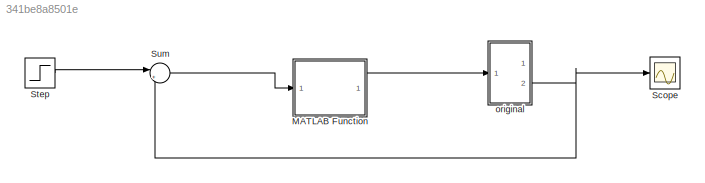
MODEL slx_341be8a8501e
KIND model
CONFIG AbsTol = auto
CONFIG EnableMultiTasking = off
CONFIG FixedStep = auto
CONFIG MaxStep = auto
CONFIG MinStep = auto
CONFIG RelTol = 1e-3
CONFIG SampleTimeConstraint = Unconstrained
CONFIG Solver = VariableStepAuto
CONFIG SolverName = VariableStepAuto
CONFIG StartTime = 0.0
CONFIG StopTime = 10.0
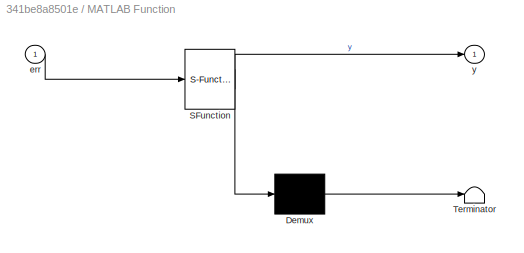
BLOCK [SubSystem] MATLAB Function
  ErrorFcn = Stateflow.Translate.translate
  PermitHierarchicalResolution = ExplicitOnly
  Ports = [1, 1]
  RequestExecContextInheritance = off
  SFBlockType = MATLAB Function
  TreatAsAtomicUnit = on
  Variant = off
BLOCK [Demux] MATLAB Function/ Demux 
  Outputs = 1
  Ports = [1, 1]
BLOCK [S-Function] MATLAB Function/ SFunction 
  EnableBusSupport = on
  FunctionName = sf_sfun
  PortCounts = [1 2]
  Ports = [1, 2]
  SFcnIsStateOwnerBlock = off
  SFunctionDeploymentMode = off
  Tag = Stateflow S-Function pm4_motor_func 2
BLOCK [Terminator] MATLAB Function/ Terminator 
BLOCK [Inport] MATLAB Function/err
  IconDisplay = Port number
BLOCK [Outport] MATLAB Function/y
  IconDisplay = Port number
BLOCK [Scope] Scope
  NumInputPorts = 1
  Ports = [1]
  ScopeSpecificationString = Simulink.scopes.TimeScopeBlockCfg('CurrentConfiguration', extmgr.ConfigurationSet(extmgr.Configuration('Core','General UI',true),extmgr.Configuration('Core','Source UI',true),extmgr.Configuration('Sources','WiredSimulink',true),extmgr.Configuration('Visuals','Time Domain',true,'SerializedDisplays',{struct('MinYLimReal','-0.05872','MaxYLimReal','2.43378','YLabelReal','','MinYLimMag','0.00000','MaxY...<+1427ch>
BLOCK [Step] Step
  SampleTime = 1
BLOCK [Sum] Sum
  IconShape = round
  InputSameDT = off
  Inputs = |+-
  OutDataTypeStr = Inherit: Inherit via internal rule
  Ports = [2, 1]
  SaturateOnIntegerOverflow = off
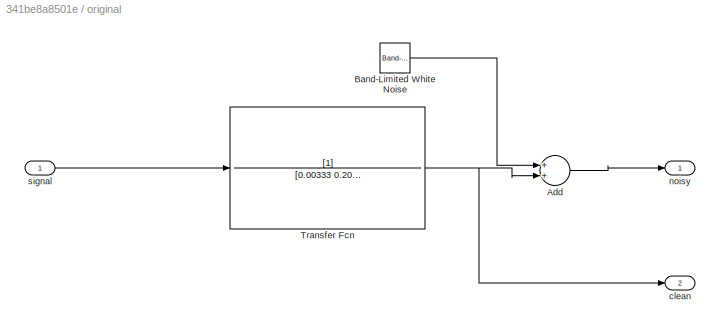
BLOCK [SubSystem] original
  Ports = [1, 2]
  RequestExecContextInheritance = off
  Variant = off
BLOCK [Sum] original/Add
  InputSameDT = off
  OutDataTypeStr = Inherit: Inherit via internal rule
  Ports = [2, 1]
  SaturateOnIntegerOverflow = off
BLOCK [Reference] original/Band-Limited White Noise  REF=simulink/Sources/Band-Limited
White Noise
  Ports = [0, 1]
  SourceBlock = simulink/Sources/Band-Limited\nWhite Noise
  SourceProductBaseCode = SL
  SourceProductName = Simulink
  SourceType = Band-Limited White Noise.
BLOCK [TransferFcn] original/Transfer Fcn
  Denominator = [0.00333 0.201 1]
BLOCK [Outport] original/clean
  IconDisplay = Port number
  Port = 2
BLOCK [Outport] original/noisy
  IconDisplay = Port number
BLOCK [Inport] original/signal
  IconDisplay = Port number
LINE MATLAB Function:1 -> original:1
LINE Step:1 -> Sum:1
LINE Sum:1 -> MATLAB Function:1
LINE original/Add:1 -> original/noisy:1
LINE original/Band-Limited White Noise:1 -> original/Add:1
NET original/Transfer Fcn:1 -> original/Add:2, original/clean:1
LINE original/signal:1 -> original/Transfer Fcn:1
NET original:2 -> Scope:1, Sum:2
note: NET lines group one-source signal fan-out (src -> all destinations, sorted); 1:1 wires keep LINE
CHART MATLAB Function states=1 transitions=1
  STATE_LABEL 'eML_blk_kernel()'
  STATE_LABEL 'SCRIPT:\nfunction y = fcn(err)\nkp = 2;\nki = 0.001;\nkd = 0.375;\n\n%kp = 0;\n%ki = 0;\n%kd = 0;\n\n% Static variables\npersistent sum;\npersistent oldErr;\n\nif isempty(sum)\n    sum = 0;\nend\nif isempty(oldErr)\n    oldErr = 0;\nend\n\ngain1 = err * kp;\n\nsum = sum + err;\ngain2 = sum * ki;\ngain3 = (err - oldErr) * kd;\n\n% Updates data\noldErr = err;\n\ny = gain1 + gain2 + gain3;\n'
